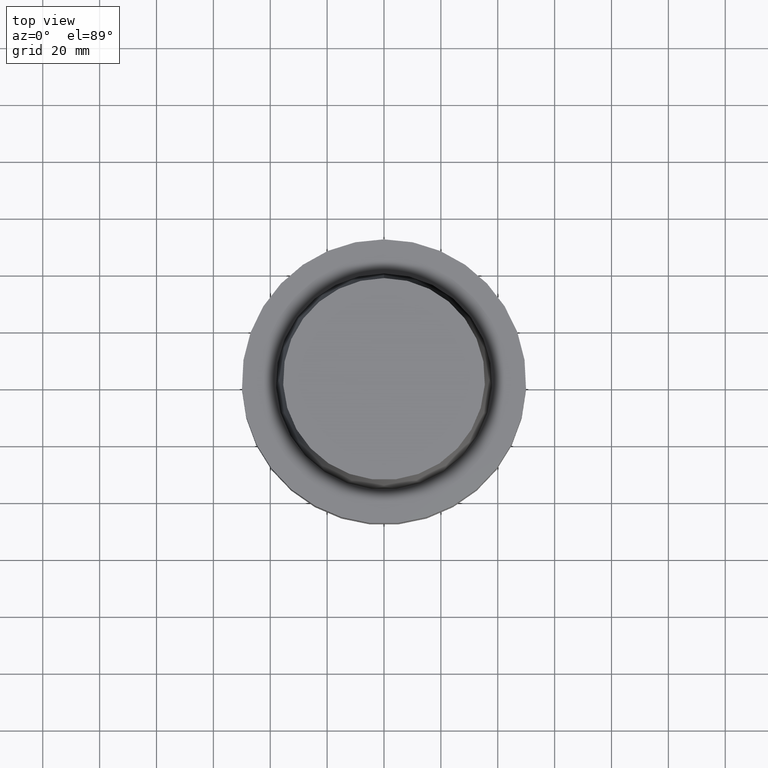
[diagram: clean part render]
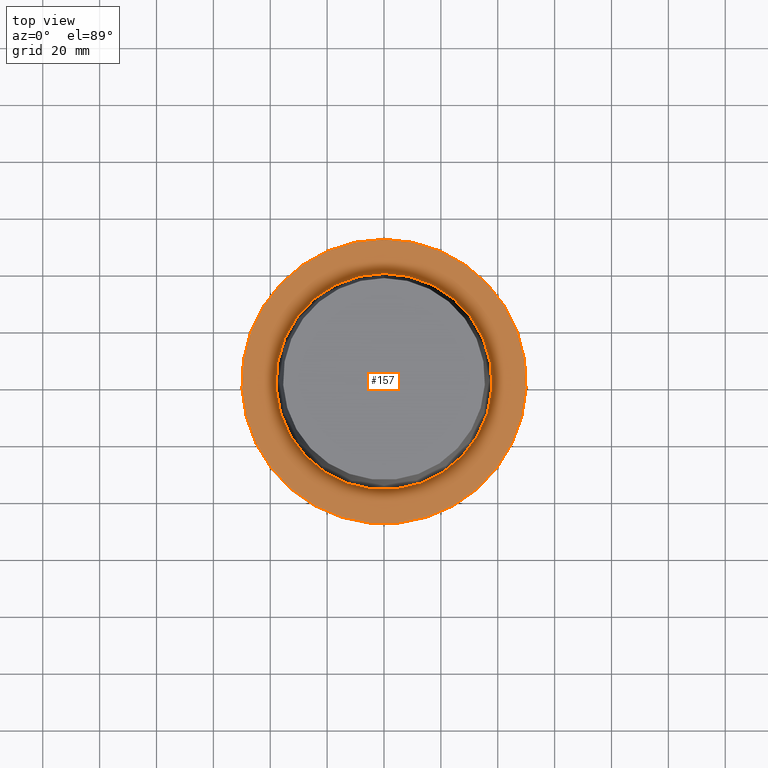
[diagram: same view with one face highlighted and labeled with its STEP entity id]
A machine part, top view. The second image highlights one B-rep face of the part: STEP entity #157.
In plain terms, the highlighted planar face has unit normal (-0, -0, 1).
Its self-contained STEP definition (entity closure, byte-faithful):
#150=EDGE_CURVE('Unnamed[1]',#328,#328,#329,.T.);
#157=ADVANCED_FACE('Unnamed[1]',(#338,#339),#340,.T.);
#167=EDGE_CURVE('Unnamed[1]',#355,#355,#356,.T.);
#328=VERTEX_POINT('',#554);
#329=CIRCLE('',#555,50.0);
#338=FACE_OUTER_BOUND('',#567,.T.);
#339=FACE_BOUND('',#568,.T.);
#340=PLANE('',#569);
#355=VERTEX_POINT('',#588);
#356=CIRCLE('',#589,37.9999999999349);
#554=CARTESIAN_POINT('',(-1.81547968506605E-031,50.0,-9.76766004263236E-016));
#555=AXIS2_PLACEMENT_3D('',#773,#774,#775);
#567=EDGE_LOOP('',(#783));
#568=EDGE_LOOP('',(#784));
#569=AXIS2_PLACEMENT_3D('',#785,#786,#787);
#588=CARTESIAN_POINT('',(-3.3636548776863E-032,37.9999999999349,-2.44634216324803E-015));
#589=AXIS2_PLACEMENT_3D('',#803,#804,#805);
#773=CARTESIAN_POINT('',(0.0,0.0,0.0));
#774=DIRECTION('',(6.12323399573677E-017,1.22464679914735E-016,-1.0));
#775=DIRECTION('',(-1.23259516440783E-032,1.0,1.22464679914735E-016));
#783=ORIENTED_EDGE('',*,*,#150,.F.);
#784=ORIENTED_EDGE('',*,*,#167,.T.);
#785=CARTESIAN_POINT('',(-1.07592258641734E-031,43.9999999999675,-1.71155408375563E-015));
#786=DIRECTION('',(-6.12323399573677E-017,-1.22464679914735E-016,1.0));
#787=DIRECTION('',(1.23259516440783E-032,-1.0,-1.22464679914735E-016));
#803=CARTESIAN_POINT('',(0.0,0.0,0.0));
#804=DIRECTION('',(6.12323399573677E-017,1.22464679914735E-016,-1.0));
#805=DIRECTION('',(-1.23259516440783E-032,1.0,1.22464679914735E-016));